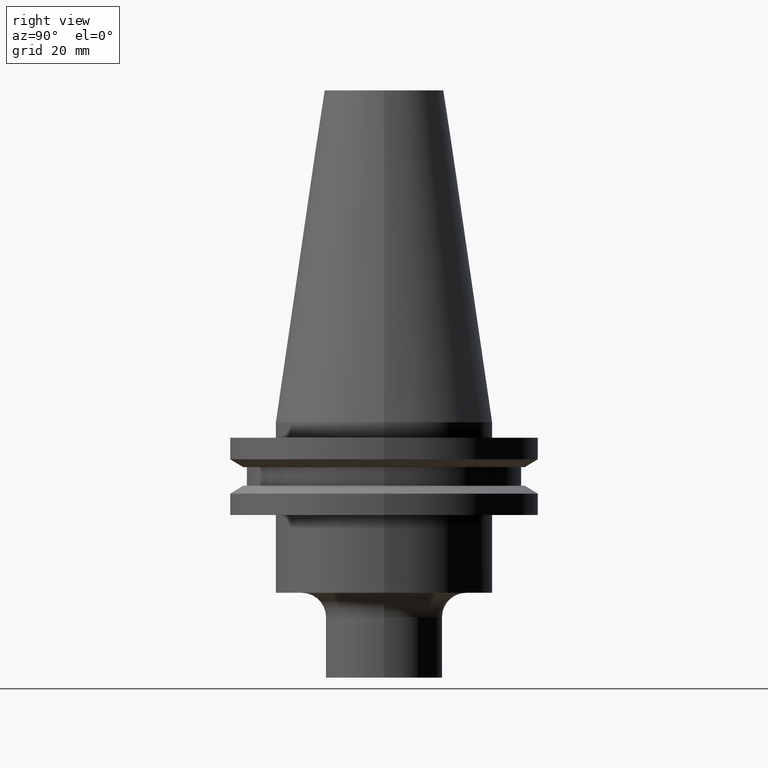
[diagram: clean part render]
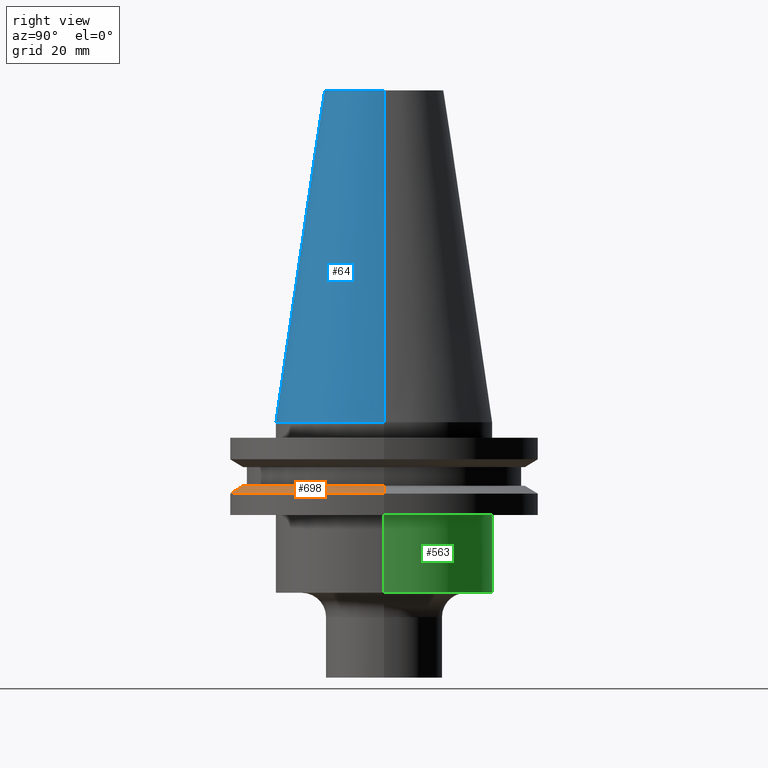
[diagram: same view with three faces highlighted in distinct colors, each labeled with its STEP entity id]
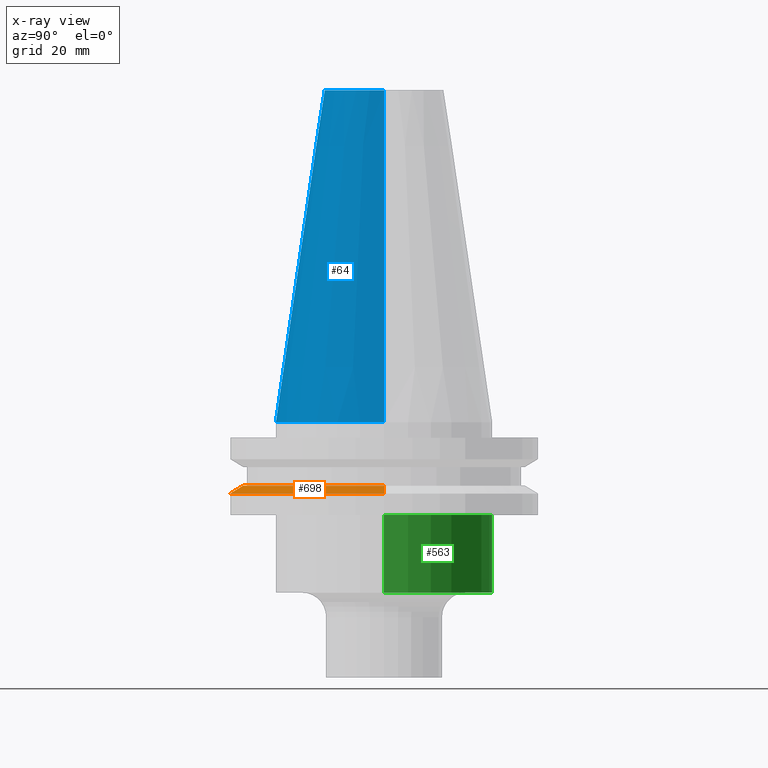
[diagram: x-ray of the same camera — body ghosted, the three highlighted faces saturated]
A machine part, right view with three faces highlighted in distinct colors.
The next image is the same camera in x-ray (body ghosted, the three faces saturated) — at least one of them is partly hidden behind the body in this view.
Their STEP definitions:

[orange] entity #698 — the highlighted conical surface has half-angle 60 deg.
#6 = VECTOR ( 'NONE', #389, 1000.000000000000000 ) ;
#18 = AXIS2_PLACEMENT_3D ( 'NONE', #234, #645, #475 ) ;
#84 = CARTESIAN_POINT ( 'NONE',  ( 0.000000000000000000, 0.000000000000000000, -14.65472339340266572 ) ) ;
#131 = CIRCLE ( 'NONE', #180, 28.97919780457008088 ) ;
#148 = EDGE_CURVE ( 'NONE', #303, #515, #131, .T. ) ;
#180 = AXIS2_PLACEMENT_3D ( 'NONE', #448, #348, #480 ) ;
#189 = ORIENTED_EDGE ( 'NONE', *, *, #573, .T. ) ;
#234 = CARTESIAN_POINT ( 'NONE',  ( 0.000000000000000000, 0.000000000000000000, -14.65472339340266572 ) ) ;
#303 = VERTEX_POINT ( 'NONE', #612 ) ;
#304 = EDGE_CURVE ( 'NONE', #515, #607, #555, .T. ) ;
#344 = EDGE_LOOP ( 'NONE', ( #748, #631, #189, #695 ) ) ;
#348 = DIRECTION ( 'NONE',  ( -0.000000000000000000, -0.000000000000000000, 1.000000000000000000 ) ) ;
#386 = DIRECTION ( 'NONE',  ( 1.000000000000000000, 0.000000000000000000, 0.000000000000000000 ) ) ;
#389 = DIRECTION ( 'NONE',  ( -0.8660254037844387076, 0.000000000000000000, -0.4999999999999998890 ) ) ;
#448 = CARTESIAN_POINT ( 'NONE',  ( 0.000000000000000000, 0.000000000000000000, -13.05499999999999794 ) ) ;
#459 = CIRCLE ( 'NONE', #506, 31.75000000000000000 ) ;
#475 = DIRECTION ( 'NONE',  ( -1.000000000000000000, 0.000000000000000000, 0.000000000000000000 ) ) ;
#480 = DIRECTION ( 'NONE',  ( 1.000000000000000000, 0.000000000000000000, 0.000000000000000000 ) ) ;
#490 = DIRECTION ( 'NONE',  ( 0.8660254037844387076, 1.060575238724906915E-16, -0.4999999999999998890 ) ) ;
#506 = AXIS2_PLACEMENT_3D ( 'NONE', #84, #746, #386 ) ;
#509 = EDGE_CURVE ( 'NONE', #682, #607, #459, .T. ) ;
#515 = VERTEX_POINT ( 'NONE', #751 ) ;
#522 = CONICAL_SURFACE ( 'NONE', #18, 31.75000000000000000, 1.047197551196597853 ) ;
#555 = LINE ( 'NONE', #602, #767 ) ;
#573 = EDGE_CURVE ( 'NONE', #303, #682, #681, .T. ) ;
#586 = FACE_OUTER_BOUND ( 'NONE', #344, .T. ) ;
#593 = CARTESIAN_POINT ( 'NONE',  ( 31.75000000000000000, 0.000000000000000000, -14.65472339340266572 ) ) ;
#602 = CARTESIAN_POINT ( 'NONE',  ( 31.75000000000000000, 3.888253587292846476E-15, -14.65472339340266572 ) ) ;
#607 = VERTEX_POINT ( 'NONE', #593 ) ;
#612 = CARTESIAN_POINT ( 'NONE',  ( -28.97919780457008088, 0.000000000000000000, -13.05499999999999794 ) ) ;
#630 = CARTESIAN_POINT ( 'NONE',  ( -31.75000000000000000, 0.000000000000000000, -14.65472339340266572 ) ) ;
#631 = ORIENTED_EDGE ( 'NONE', *, *, #148, .F. ) ;
#645 = DIRECTION ( 'NONE',  ( 0.000000000000000000, 0.000000000000000000, -1.000000000000000000 ) ) ;
#651 = CARTESIAN_POINT ( 'NONE',  ( -31.75000000000000000, 3.888253587292846476E-15, -14.65472339340266572 ) ) ;
#681 = LINE ( 'NONE', #630, #6 ) ;
#682 = VERTEX_POINT ( 'NONE', #651 ) ;
#695 = ORIENTED_EDGE ( 'NONE', *, *, #509, .T. ) ;
#698 = ADVANCED_FACE ( 'NONE', ( #586 ), #522, .T. ) ;
#746 = DIRECTION ( 'NONE',  ( -0.000000000000000000, -0.000000000000000000, 1.000000000000000000 ) ) ;
#748 = ORIENTED_EDGE ( 'NONE', *, *, #304, .F. ) ;
#751 = CARTESIAN_POINT ( 'NONE',  ( 28.97919780457008088, 3.718590885307660666E-15, -13.05499999999999794 ) ) ;
#767 = VECTOR ( 'NONE', #490, 1000.000000000000000 ) ;

[blue] entity #64 — the highlighted conical surface has half-angle 8.297 deg.
#15 = AXIS2_PLACEMENT_3D ( 'NONE', #758, #270, #747 ) ;
#28 = CIRCLE ( 'NONE', #15, 22.22500000000000142 ) ;
#40 = VECTOR ( 'NONE', #76, 999.9999999999998863 ) ;
#42 = LINE ( 'NONE', #110, #357 ) ;
#43 = CARTESIAN_POINT ( 'NONE',  ( -12.27178102086201150, 0.000000000000000000, 68.25000000000000000 ) ) ;
#62 = CARTESIAN_POINT ( 'NONE',  ( -22.22500000000000142, 0.000000000000000000, 0.000000000000000000 ) ) ;
#64 = ADVANCED_FACE ( 'NONE', ( #266 ), #295, .T. ) ;
#76 = DIRECTION ( 'NONE',  ( -0.1443082272672999711, 0.000000000000000000, -0.9895327864921755756 ) ) ;
#107 = DIRECTION ( 'NONE',  ( 1.000000000000000000, 0.000000000000000000, 0.000000000000000000 ) ) ;
#108 = ORIENTED_EDGE ( 'NONE', *, *, #373, .T. ) ;
#110 = CARTESIAN_POINT ( 'NONE',  ( 22.22500000000000142, 2.721777511104992849E-15, 0.000000000000000000 ) ) ;
#126 = EDGE_CURVE ( 'NONE', #192, #278, #28, .T. ) ;
#128 = LINE ( 'NONE', #62, #40 ) ;
#143 = CIRCLE ( 'NONE', #393, 12.27178102086201150 ) ;
#192 = VERTEX_POINT ( 'NONE', #529 ) ;
#197 = EDGE_CURVE ( 'NONE', #292, #598, #143, .T. ) ;
#206 = ORIENTED_EDGE ( 'NONE', *, *, #126, .T. ) ;
#237 = CARTESIAN_POINT ( 'NONE',  ( 0.000000000000000000, 0.000000000000000000, 68.25000000000000000 ) ) ;
#246 = EDGE_LOOP ( 'NONE', ( #544, #699, #108, #206 ) ) ;
#266 = FACE_OUTER_BOUND ( 'NONE', #246, .T. ) ;
#270 = DIRECTION ( 'NONE',  ( -0.000000000000000000, -0.000000000000000000, 1.000000000000000000 ) ) ;
#278 = VERTEX_POINT ( 'NONE', #294 ) ;
#292 = VERTEX_POINT ( 'NONE', #43 ) ;
#294 = CARTESIAN_POINT ( 'NONE',  ( 22.22500000000000142, 2.721777511104992849E-15, 0.000000000000000000 ) ) ;
#295 = CONICAL_SURFACE ( 'NONE', #481, 22.22500000000000142, 0.1448138465474119174 ) ;
#336 = DIRECTION ( 'NONE',  ( 0.000000000000000000, 0.000000000000000000, -1.000000000000000000 ) ) ;
#357 = VECTOR ( 'NONE', #402, 999.9999999999998863 ) ;
#373 = EDGE_CURVE ( 'NONE', #292, #192, #128, .T. ) ;
#387 = CARTESIAN_POINT ( 'NONE',  ( 0.000000000000000000, 0.000000000000000000, 0.000000000000000000 ) ) ;
#393 = AXIS2_PLACEMENT_3D ( 'NONE', #237, #706, #107 ) ;
#402 = DIRECTION ( 'NONE',  ( 0.1443082272672999711, 1.767266086135276757E-17, -0.9895327864921755756 ) ) ;
#454 = DIRECTION ( 'NONE',  ( -1.000000000000000000, 0.000000000000000000, 0.000000000000000000 ) ) ;
#481 = AXIS2_PLACEMENT_3D ( 'NONE', #387, #336, #454 ) ;
#529 = CARTESIAN_POINT ( 'NONE',  ( -22.22500000000000142, 0.000000000000000000, 0.000000000000000000 ) ) ;
#544 = ORIENTED_EDGE ( 'NONE', *, *, #634, .F. ) ;
#598 = VERTEX_POINT ( 'NONE', #768 ) ;
#634 = EDGE_CURVE ( 'NONE', #598, #278, #42, .T. ) ;
#699 = ORIENTED_EDGE ( 'NONE', *, *, #197, .F. ) ;
#706 = DIRECTION ( 'NONE',  ( -0.000000000000000000, -0.000000000000000000, 1.000000000000000000 ) ) ;
#747 = DIRECTION ( 'NONE',  ( 1.000000000000000000, 0.000000000000000000, 0.000000000000000000 ) ) ;
#758 = CARTESIAN_POINT ( 'NONE',  ( 0.000000000000000000, 0.000000000000000000, 0.000000000000000000 ) ) ;
#768 = CARTESIAN_POINT ( 'NONE',  ( 12.27178102086201150, 2.112318622904291439E-15, 68.25000000000000000 ) ) ;

[green] entity #563 — the highlighted cylindrical surface (partial cylindrical patch) has radius 22.225 mm, axis along (-0, -0, 1).
#17 = VECTOR ( 'NONE', #572, 1000.000000000000000 ) ;
#21 = VERTEX_POINT ( 'NONE', #25 ) ;
#25 = CARTESIAN_POINT ( 'NONE',  ( -22.22500000000000142, 2.721777511104992849E-15, -19.04999999999999716 ) ) ;
#29 = CIRCLE ( 'NONE', #66, 22.22500000000000142 ) ;
#61 = DIRECTION ( 'NONE',  ( -0.000000000000000000, -0.000000000000000000, 1.000000000000000000 ) ) ;
#66 = AXIS2_PLACEMENT_3D ( 'NONE', #440, #98, #619 ) ;
#74 = VERTEX_POINT ( 'NONE', #99 ) ;
#78 = VERTEX_POINT ( 'NONE', #568 ) ;
#98 = DIRECTION ( 'NONE',  ( -0.000000000000000000, -0.000000000000000000, 1.000000000000000000 ) ) ;
#99 = CARTESIAN_POINT ( 'NONE',  ( -22.22500000000000142, 2.721777511104992849E-15, -35.04999999999999716 ) ) ;
#117 = AXIS2_PLACEMENT_3D ( 'NONE', #159, #146, #567 ) ;
#138 = ORIENTED_EDGE ( 'NONE', *, *, #474, .T. ) ;
#139 = DIRECTION ( 'NONE',  ( -0.000000000000000000, -0.000000000000000000, 1.000000000000000000 ) ) ;
#146 = DIRECTION ( 'NONE',  ( -0.000000000000000000, -0.000000000000000000, 1.000000000000000000 ) ) ;
#149 = LINE ( 'NONE', #276, #17 ) ;
#157 = VERTEX_POINT ( 'NONE', #591 ) ;
#159 = CARTESIAN_POINT ( 'NONE',  ( 0.000000000000000000, 0.000000000000000000, 68.25000000000000000 ) ) ;
#171 = ORIENTED_EDGE ( 'NONE', *, *, #499, .F. ) ;
#186 = LINE ( 'NONE', #542, #271 ) ;
#271 = VECTOR ( 'NONE', #61, 1000.000000000000000 ) ;
#276 = CARTESIAN_POINT ( 'NONE',  ( -22.22500000000000142, 2.721777511104992849E-15, 68.25000000000000000 ) ) ;
#352 = ORIENTED_EDGE ( 'NONE', *, *, #369, .T. ) ;
#369 = EDGE_CURVE ( 'NONE', #78, #74, #520, .T. ) ;
#421 = DIRECTION ( 'NONE',  ( 1.000000000000000000, 0.000000000000000000, 0.000000000000000000 ) ) ;
#440 = CARTESIAN_POINT ( 'NONE',  ( 0.000000000000000000, 0.000000000000000000, -19.04999999999999716 ) ) ;
#447 = CYLINDRICAL_SURFACE ( 'NONE', #117, 22.22500000000000142 ) ;
#474 = EDGE_CURVE ( 'NONE', #74, #21, #149, .T. ) ;
#488 = ORIENTED_EDGE ( 'NONE', *, *, #765, .F. ) ;
#499 = EDGE_CURVE ( 'NONE', #157, #21, #29, .T. ) ;
#510 = EDGE_LOOP ( 'NONE', ( #352, #138, #171, #488 ) ) ;
#520 = CIRCLE ( 'NONE', #729, 22.22500000000000142 ) ;
#542 = CARTESIAN_POINT ( 'NONE',  ( 22.22500000000000142, 0.000000000000000000, 68.25000000000000000 ) ) ;
#563 = ADVANCED_FACE ( 'NONE', ( #690 ), #447, .T. ) ;
#567 = DIRECTION ( 'NONE',  ( 1.000000000000000000, 0.000000000000000000, 0.000000000000000000 ) ) ;
#568 = CARTESIAN_POINT ( 'NONE',  ( 22.22500000000000142, 0.000000000000000000, -35.04999999999999716 ) ) ;
#572 = DIRECTION ( 'NONE',  ( -0.000000000000000000, -0.000000000000000000, 1.000000000000000000 ) ) ;
#591 = CARTESIAN_POINT ( 'NONE',  ( 22.22500000000000142, 0.000000000000000000, -19.04999999999999716 ) ) ;
#619 = DIRECTION ( 'NONE',  ( 1.000000000000000000, 0.000000000000000000, 0.000000000000000000 ) ) ;
#672 = CARTESIAN_POINT ( 'NONE',  ( 0.000000000000000000, 0.000000000000000000, -35.04999999999999716 ) ) ;
#690 = FACE_OUTER_BOUND ( 'NONE', #510, .T. ) ;
#729 = AXIS2_PLACEMENT_3D ( 'NONE', #672, #139, #421 ) ;
#765 = EDGE_CURVE ( 'NONE', #78, #157, #186, .T. ) ;